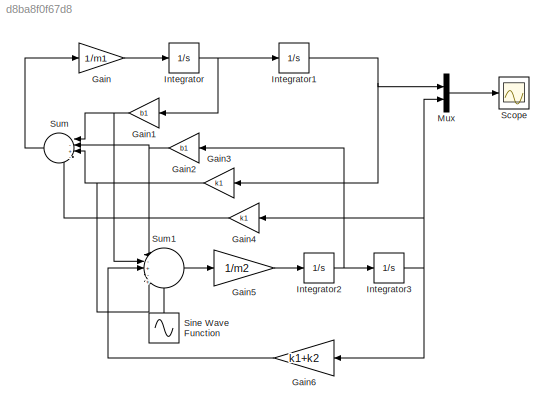
MODEL slx_d8ba8f0f67d8
KIND model
CONFIG AbsTol = auto
CONFIG EnableMultiTasking = off
CONFIG FixedStep = auto
CONFIG MaxStep = auto
CONFIG MinStep = auto
CONFIG PreLoadFcn = CarroParametros.m
CONFIG RelTol = 1e-3
CONFIG SampleTimeConstraint = Unconstrained
CONFIG SolverName = VariableStepAuto
CONFIG StartTime = 0.0
CONFIG StopTime = 10.0
BLOCK [Gain] Gain
  Gain = 1/m1
BLOCK [Gain] Gain1
  Gain = b1
  NameLocation = top
BLOCK [Gain] Gain2
  Gain = b1
  NameLocation = top
BLOCK [Gain] Gain3
  Gain = k1
  NameLocation = top
BLOCK [Gain] Gain4
  Gain = k1
  NameLocation = top
BLOCK [Gain] Gain5
  Gain = 1/m2
BLOCK [Gain] Gain6
  Gain = k1+k2
  NameLocation = top
BLOCK [Integrator] Integrator
BLOCK [Integrator] Integrator1
BLOCK [Integrator] Integrator2
BLOCK [Integrator] Integrator3
BLOCK [Mux] Mux
  DisplayOption = bar
  Inputs = 2
BLOCK [Scope] Scope
  Floating = off
  NumInputPorts = 1
  ScopeSpecificationString = Simulink.scopes.TimeScopeBlockCfg('CurrentConfiguration', extmgr.ConfigurationSet(extmgr.Configuration('Core','General UI',true),extmgr.Configuration('Core','Source UI',true),extmgr.Configuration('Sources','WiredSimulink',true),extmgr.Configuration('Visuals','Time Domain',true,'SerializedDisplays',{struct('MinYLimReal','-0.07016','MaxYLimReal','0.08038','YLabelReal','','MinYLimMag','0.00000','MaxY...<+1424ch>
BLOCK [Sin] Sine Wave Function
  Amplitude = 0.05*k2
  Frequency = 0.5*pi
  NameLocation = right
  SampleTime = 0
BLOCK [Sum] Sum
  Inputs = |-+-+
  NameLocation = top
BLOCK [Sum] Sum1
  Inputs = |-+-++
NET Gain1:1 -> Sum1:2, Sum:1
NET Gain2:1 -> Sum1:1, Sum:2
NET Gain3:1 -> Sum1:4, Sum:3
LINE Gain4:1 -> Sum:4
LINE Gain5:1 -> Integrator2:1
LINE Gain6:1 -> Sum1:3
LINE Gain:1 -> Integrator:1
NET Integrator1:1 -> Gain3:1, Mux:1
NET Integrator2:1 -> Gain2:1, Integrator3:1
NET Integrator3:1 -> Gain4:1, Gain6:1, Mux:2
NET Integrator:1 -> Gain1:1, Integrator1:1
LINE Mux:1 -> Scope:1
LINE Sine Wave Function:1 -> Sum1:5
LINE Sum1:1 -> Gain5:1
LINE Sum:1 -> Gain:1
note: NET lines group one-source signal fan-out (src -> all destinations, sorted); 1:1 wires keep LINE
